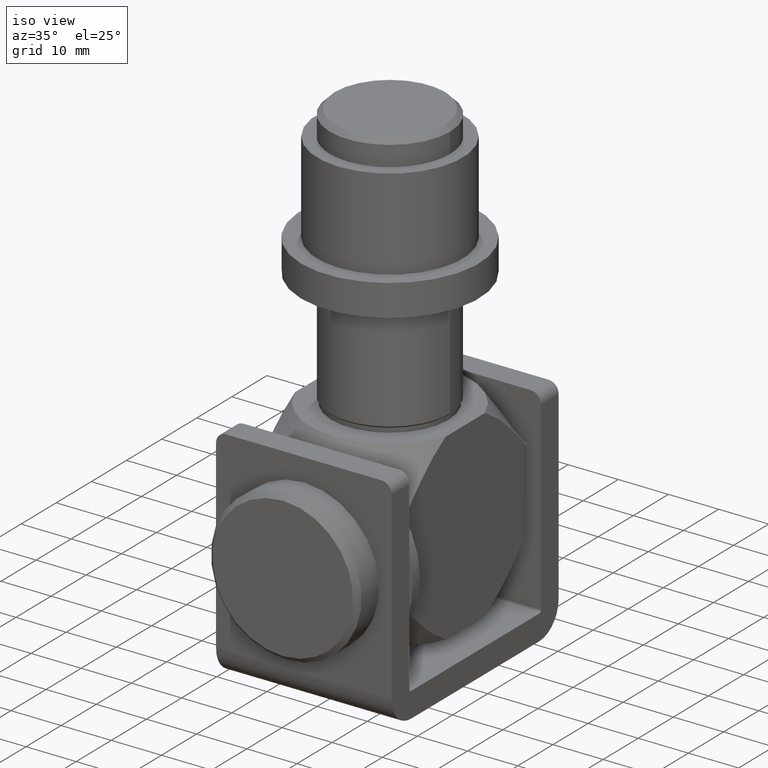
[diagram: clean part render]
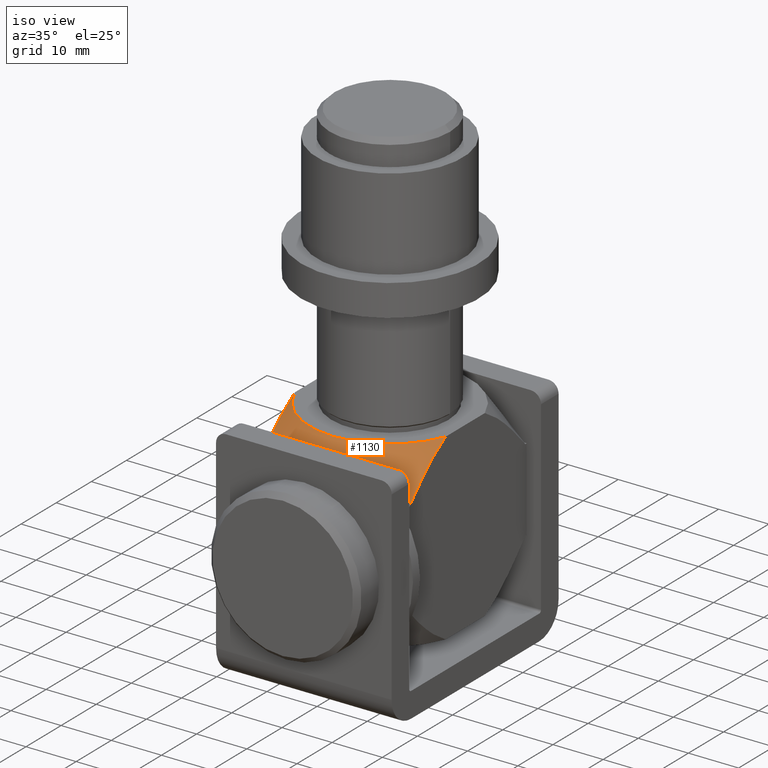
[diagram: same view with one face highlighted and labeled with its STEP entity id]
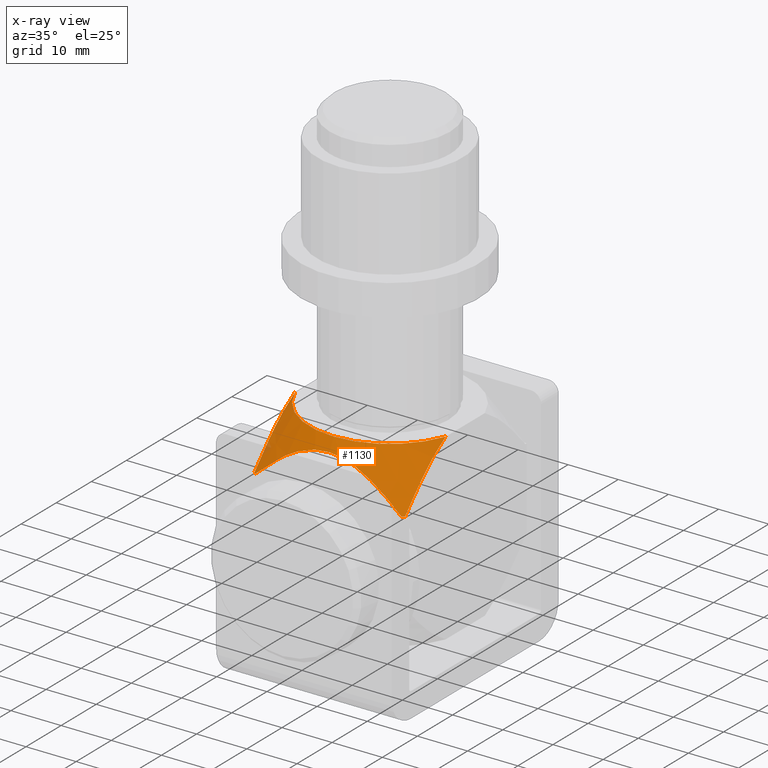
[diagram: x-ray of the same camera — body ghosted, the highlighted face saturated]
A machine part, iso view. The second image highlights one B-rep face of the part: STEP entity #1130.
The next image is the same camera in x-ray: the body ghosted, the highlighted face saturated — about 1% of this face is hidden behind the body in this view.
In plain terms, the highlighted conical surface has half-angle 34 deg.
Its self-contained STEP definition (entity closure, byte-faithful):
#124 = CARTESIAN_POINT ( 'NONE',  ( -6.732445440958379379, -17.49999999999999645, 14.19380851085851170 ) ) ;
#176 = CARTESIAN_POINT ( 'NONE',  ( -0.6993098756212822176, -17.50000000000000355, 16.01796704963554419 ) ) ;
#399 = EDGE_CURVE ( 'NONE', #10317, #13231, #9242, .T. ) ;
#537 = CARTESIAN_POINT ( 'NONE',  ( 10.84656079515347216, -17.50000000000000000, 11.46165632235258158 ) ) ;
#862 = CARTESIAN_POINT ( 'NONE',  ( -14.99999999999999645, -13.61731693733857540, 11.95775842663897315 ) ) ;
#909 = CARTESIAN_POINT ( 'NONE',  ( -14.99999999999999645, -17.10445848309732852, 8.249999999999989342 ) ) ;
#1130 = ADVANCED_FACE ( 'NONE', ( #2220 ), #1511, .T. ) ;
#1247 = CARTESIAN_POINT ( 'NONE',  ( 2.804061449563844732, -17.50000000000000000, 15.70722223458949784 ) ) ;
#1298 = CARTESIAN_POINT ( 'NONE',  ( -1.403494089436361447, -17.50000000000000000, 15.95535654815026128 ) ) ;
#1339 = CARTESIAN_POINT ( 'NONE',  ( 14.99999999999999822, -13.60099969902160666, 11.97418831598015743 ) ) ;
#1395 = CARTESIAN_POINT ( 'NONE',  ( -4.810697509520792892, -17.49999999999999645, 15.07499767740635477 ) ) ;
#1403 = CARTESIAN_POINT ( 'NONE',  ( 15.00000000000000178, -5.581872335156964127, 18.25000000000000000 ) ) ;
#1443 = CARTESIAN_POINT ( 'NONE',  ( 15.00000000000000000, -16.25103717546246429, 9.201270375850461036 ) ) ;
#1511 = CONICAL_SURFACE ( 'NONE', #10219, 16.67942334841809782, 0.5934119456780773127 ) ;
#1647 = CARTESIAN_POINT ( 'NONE',  ( 10.28918224694760575, -17.50000000000000000, 11.89046218753677486 ) ) ;
#1845 = CARTESIAN_POINT ( 'NONE',  ( 0.000000000000000000, 0.000000000000000000, 18.25000000000000000 ) ) ;
#1891 = DIRECTION ( 'NONE',  ( -1.000000000000000000, 0.000000000000000000, 0.000000000000000000 ) ) ;
#2014 = CARTESIAN_POINT ( 'NONE',  ( -14.99999999999999289, -16.25434581636266529, 9.197582382541023449 ) ) ;
#2220 = FACE_OUTER_BOUND ( 'NONE', #5453, .T. ) ;
#2502 = CARTESIAN_POINT ( 'NONE',  ( -12.47706178526537890, -17.49999999999999645, 10.14337019878170310 ) ) ;
#2550 = CARTESIAN_POINT ( 'NONE',  ( -1.752494317436451343, -17.50000000000000711, 15.90865337923773737 ) ) ;
#2600 = B_SPLINE_CURVE_WITH_KNOTS ( 'NONE', 3,
 ( #8666, #1443, #4908, #1339, #9484, #8193, #12947, #5866, #7130, #7238 ),
 .UNSPECIFIED., .F., .F.,
 ( 4, 2, 2, 2, 4 ),
 ( 0.02784380351170047396, 0.03168327165843255050, 0.03552273980516462704, 0.03936220795189669663, 0.04320167609862877317 ),
 .UNSPECIFIED. ) ;
#2731 = VERTEX_POINT ( 'NONE', #4986 ) ;
#3481 = AXIS2_PLACEMENT_3D ( 'NONE', #1845, #9941, #1891 ) ;
#3712 = CARTESIAN_POINT ( 'NONE',  ( -0.3422423612104296131, -17.50000000000000000, 16.03382412940133150 ) ) ;
#3767 = AXIS2_PLACEMENT_3D ( 'NONE', #9294, #12549, #14904 ) ;
#3860 = ORIENTED_EDGE ( 'NONE', *, *, #8122, .T. ) ;
#3992 = CARTESIAN_POINT ( 'NONE',  ( -14.99999999999999467, -5.581872335156982778, 18.25000000000000000 ) ) ;
#4673 = CARTESIAN_POINT ( 'NONE',  ( -8.543432454890899308, -17.50000000000000000, 13.11805515983322756 ) ) ;
#4870 = CARTESIAN_POINT ( 'NONE',  ( 2.460534987805139462, -17.50000000000000000, 15.78319195133595620 ) ) ;
#4908 = CARTESIAN_POINT ( 'NONE',  ( 15.00000000000000533, -15.38256512900165340, 10.13897882629279579 ) ) ;
#4986 = CARTESIAN_POINT ( 'NONE',  ( -14.99999999999999645, -17.10445848309732852, 8.249999999999989342 ) ) ;
#5211 = EDGE_CURVE ( 'NONE', #2731, #9846, #8106, .T. ) ;
#5453 = EDGE_LOOP ( 'NONE', ( #10226, #3860, #6091, #9886, #8289, #10980 ) ) ;
#5827 = CARTESIAN_POINT ( 'NONE',  ( -2.790824322661085599, -17.50000000000000000, 15.72536287923980503 ) ) ;
#5866 = CARTESIAN_POINT ( 'NONE',  ( 15.00000000000000178, -7.778752316301808634, 16.96129635980056705 ) ) ;
#5968 = EDGE_CURVE ( 'NONE', #9298, #10317, #2600, .T. ) ;
#5978 = DIRECTION ( 'NONE',  ( 0.000000000000000000, 0.000000000000000000, -1.000000000000000000 ) ) ;
#6027 = CARTESIAN_POINT ( 'NONE',  ( 5.506445914519699336, -17.50000000000000000, 14.84847111686319465 ) ) ;
#6091 = ORIENTED_EDGE ( 'NONE', *, *, #5968, .T. ) ;
#6132 = CARTESIAN_POINT ( 'NONE',  ( 12.48203983127671357, -17.50000000000000355, 10.13885989491504347 ) ) ;
#6358 = DIRECTION ( 'NONE',  ( 1.000000000000000000, 0.000000000000000000, 0.000000000000000000 ) ) ;
#6987 = CARTESIAN_POINT ( 'NONE',  ( 3.827477632524944884, -17.50000000000000000, 15.42456999899061820 ) ) ;
#7088 = CARTESIAN_POINT ( 'NONE',  ( -7.345704996232504058, -17.50000000000000355, 13.85208266731263649 ) ) ;
#7130 = CARTESIAN_POINT ( 'NONE',  ( 15.00000000000000355, -6.718279773457555670, 17.66241166981272670 ) ) ;
#7139 = CARTESIAN_POINT ( 'NONE',  ( -10.27433012436343418, -17.50000000000000355, 11.90161574064244476 ) ) ;
#7238 = CARTESIAN_POINT ( 'NONE',  ( 15.00000000000000178, -5.581872335156964127, 18.25000000000000000 ) ) ;
#7452 = CARTESIAN_POINT ( 'NONE',  ( 8.555362087111577196, -17.50000000000000000, 13.11029625318885827 ) ) ;
#7546 = B_SPLINE_CURVE_WITH_KNOTS ( 'NONE', 3,
 ( #10452, #12748, #2502, #12794, #7139, #13911, #4673, #7088, #124, #12701, #8307, #1395, #9442, #10604, #5827, #2550, #1298, #176, #3712, #11750, #13858, #4870, #1247, #12901, #6987, #6027, #9545, #7452, #8404, #1647, #537, #6132, #10705, #10919 ),
 .UNSPECIFIED., .F., .F.,
 ( 4, 2, 2, 2, 2, 2, 2, 2, 2, 2, 2, 2, 2, 2, 2, 2, 4 ),
 ( 0.01680338457712573022, 0.02099208288698428335, 0.02308643204191355991, 0.02518078119684283647, 0.02727513035177211997, 0.02832230492923675652, 0.02936947950670139654, 0.03146382866163068004, 0.03251100323909532352, 0.03355817781655996701, 0.03565252697148925398, 0.03669970154895389053, 0.03774687612641853401, 0.04193557443627710102, 0.04402992359120637411, 0.04612427274613566108, 0.05031297105599422115 ),
 .UNSPECIFIED. ) ;
#7778 = CARTESIAN_POINT ( 'NONE',  ( -14.99999999999999467, -5.581872335156982778, 18.25000000000000000 ) ) ;
#7867 = CARTESIAN_POINT ( 'NONE',  ( -14.99999999999999645, -6.720010515612782065, 17.66151677608121773 ) ) ;
#8069 = CARTESIAN_POINT ( 'NONE',  ( 14.53659176010663323, -17.50000000000000000, 8.249999999999989342 ) ) ;
#8106 = CIRCLE ( 'NONE', #3767, 22.75000000000000355 ) ;
#8122 = EDGE_CURVE ( 'NONE', #13099, #9298, #10683, .T. ) ;
#8193 = CARTESIAN_POINT ( 'NONE',  ( 15.00000000000000533, -10.79242830467490499, 14.60425445367251918 ) ) ;
#8289 = ORIENTED_EDGE ( 'NONE', *, *, #8363, .T. ) ;
#8307 = CARTESIAN_POINT ( 'NONE',  ( -5.463347443495584876, -17.50000000000000000, 14.80246552673325766 ) ) ;
#8353 = CARTESIAN_POINT ( 'NONE',  ( 0.000000000000000000, 0.000000000000000000, 17.24999999999999289 ) ) ;
#8363 = EDGE_CURVE ( 'NONE', #13231, #2731, #13008, .T. ) ;
#8404 = CARTESIAN_POINT ( 'NONE',  ( 9.142061260063636396, -17.50000000000000000, 12.71595527466482167 ) ) ;
#8459 = DIRECTION ( 'NONE',  ( 1.000000000000000000, 0.000000000000000000, 0.000000000000000000 ) ) ;
#8666 = CARTESIAN_POINT ( 'NONE',  ( 15.00000000000000178, -17.10445848309732497, 8.249999999999989342 ) ) ;
#8685 = CARTESIAN_POINT ( 'NONE',  ( -14.53659176010663323, -17.50000000000000000, 8.249999999999989342 ) ) ;
#8922 = CARTESIAN_POINT ( 'NONE',  ( -14.99999999999999467, -10.82807911520342614, 14.57295889118195120 ) ) ;
#9066 = CARTESIAN_POINT ( 'NONE',  ( -14.99999999999999112, -12.70992277830501571, 12.85078148188904912 ) ) ;
#9242 = CIRCLE ( 'NONE', #3481, 16.00491483157566464 ) ;
#9294 = CARTESIAN_POINT ( 'NONE',  ( 0.000000000000000000, 0.000000000000000000, 8.249999999999989342 ) ) ;
#9298 = VERTEX_POINT ( 'NONE', #12246 ) ;
#9442 = CARTESIAN_POINT ( 'NONE',  ( -4.477628402845365230, -17.49999999999999645, 15.20201887788309492 ) ) ;
#9484 = CARTESIAN_POINT ( 'NONE',  ( 15.00000000000000355, -12.68819888421710829, 12.87195298315281455 ) ) ;
#9545 = CARTESIAN_POINT ( 'NONE',  ( 6.757714316525970766, -17.49999999999999645, 14.21331567271632146 ) ) ;
#9846 = VERTEX_POINT ( 'NONE', #8685 ) ;
#9886 = ORIENTED_EDGE ( 'NONE', *, *, #399, .T. ) ;
#9941 = DIRECTION ( 'NONE',  ( 0.000000000000000000, 0.000000000000000000, -1.000000000000000000 ) ) ;
#10208 = CARTESIAN_POINT ( 'NONE',  ( -14.99999999999999645, -15.38966123423664989, 10.13128534488564902 ) ) ;
#10219 = AXIS2_PLACEMENT_3D ( 'NONE', #8353, #5978, #8459 ) ;
#10226 = ORIENTED_EDGE ( 'NONE', *, *, #13673, .T. ) ;
#10317 = VERTEX_POINT ( 'NONE', #1403 ) ;
#10324 = AXIS2_PLACEMENT_3D ( 'NONE', #13230, #12326, #6358 ) ;
#10452 = CARTESIAN_POINT ( 'NONE',  ( -14.53659176010663323, -17.50000000000000000, 8.249999999999989342 ) ) ;
#10604 = CARTESIAN_POINT ( 'NONE',  ( -3.471485088798069274, -17.50000000000000355, 15.54560286017544257 ) ) ;
#10683 = CIRCLE ( 'NONE', #10324, 22.75000000000000355 ) ;
#10705 = CARTESIAN_POINT ( 'NONE',  ( 13.52412322833870562, -17.50000000000000355, 9.209125172276163340 ) ) ;
#10919 = CARTESIAN_POINT ( 'NONE',  ( 14.53659176010663323, -17.50000000000000000, 8.249999999999989342 ) ) ;
#10980 = ORIENTED_EDGE ( 'NONE', *, *, #5211, .T. ) ;
#11750 = CARTESIAN_POINT ( 'NONE',  ( 0.7229826032157291582, -17.50000000000000000, 16.03266606876055178 ) ) ;
#12246 = CARTESIAN_POINT ( 'NONE',  ( 15.00000000000000178, -17.10445848309732497, 8.249999999999989342 ) ) ;
#12326 = DIRECTION ( 'NONE',  ( -0.000000000000000000, -0.000000000000000000, 1.000000000000000000 ) ) ;
#12549 = DIRECTION ( 'NONE',  ( -0.000000000000000000, -0.000000000000000000, 1.000000000000000000 ) ) ;
#12701 = CARTESIAN_POINT ( 'NONE',  ( -5.784185581462334191, -17.50000000000000000, 14.65656121041950932 ) ) ;
#12748 = CARTESIAN_POINT ( 'NONE',  ( -13.52191123607419065, -17.50000000000000355, 9.211220622549635806 ) ) ;
#12794 = CARTESIAN_POINT ( 'NONE',  ( -10.83569583951387116, -17.50000000000000355, 11.47019907465367794 ) ) ;
#12901 = CARTESIAN_POINT ( 'NONE',  ( 3.486962977215160020, -17.49999999999999645, 15.52811242152482585 ) ) ;
#12947 = CARTESIAN_POINT ( 'NONE',  ( 15.00000000000000355, -9.815724594343100406, 15.43352162488259971 ) ) ;
#13008 = B_SPLINE_CURVE_WITH_KNOTS ( 'NONE', 3,
 ( #7778, #7867, #13629, #14781, #8922, #9066, #862, #10208, #2014, #909 ),
 .UNSPECIFIED., .F., .F.,
 ( 4, 2, 2, 2, 4 ),
 ( 0.05476050662101096533, 0.05858431106678322481, 0.06240811551255547734, 0.06623191995832773682, 0.07005572440409998936 ),
 .UNSPECIFIED. ) ;
#13099 = VERTEX_POINT ( 'NONE', #8069 ) ;
#13230 = CARTESIAN_POINT ( 'NONE',  ( 0.000000000000000000, 0.000000000000000000, 8.249999999999989342 ) ) ;
#13231 = VERTEX_POINT ( 'NONE', #3992 ) ;
#13629 = CARTESIAN_POINT ( 'NONE',  ( -14.99999999999999467, -7.791991486501234299, 16.95304049188800377 ) ) ;
#13673 = EDGE_CURVE ( 'NONE', #9846, #13099, #7546, .T. ) ;
#13858 = CARTESIAN_POINT ( 'NONE',  ( 1.423320923519903802, -17.50000000000000000, 15.96767793673397762 ) ) ;
#13911 = CARTESIAN_POINT ( 'NONE',  ( -9.127865902263426534, -17.50000000000000000, 12.72569296998517174 ) ) ;
#14781 = CARTESIAN_POINT ( 'NONE',  ( -14.99999999999999289, -9.854371051276757498, 15.40281945020855403 ) ) ;
#14904 = DIRECTION ( 'NONE',  ( 1.000000000000000000, 0.000000000000000000, 0.000000000000000000 ) ) ;